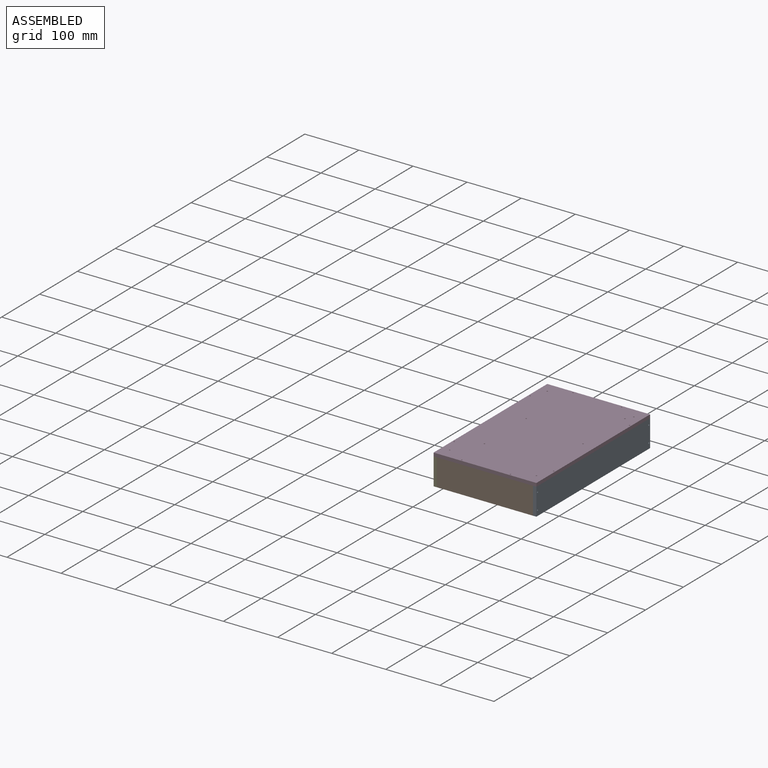
[diagram: assembled view]
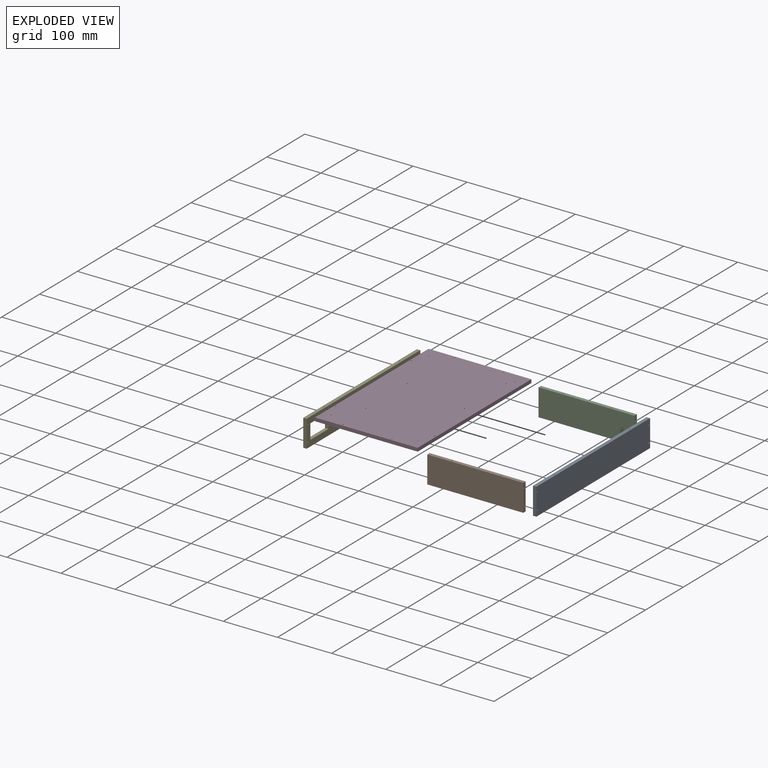
[diagram: exploded view]
GUIDED TOUR — MATED ASSEMBLY (Onshape document be04a6efa97a7b96dd22752b, AutoMate assembly be04a6efa97a7b96dd22752b_beda1ac04cc98a3a99c3953f_c620594ce4365db78ad1adce_default)

This assembly has 5 components, labeled P0..P4 below (a component is one placed occurrence of a part; the same part can appear more than once), held together by 8 mates. A mate is a constraint between two components; its type names the relative motion it leaves free:
  FASTENED — locks the two components together rigidly (no relative motion),
  PLANAR — leaves sliding in the plane through the listed point (normal = the listed direction) and rotation about that normal free.
Axis/direction vectors are unit vectors and 'through' points are millimeter coordinates, both in the assembly's world frame.

MATES
  1. FASTENED "Fastened 1": P1 <-> P0, direction (1.000, 0.000, 0.000) through (73.60, -127.81, 28.02) mm
  2. PLANAR "Planar 5": P3 <-> P0, direction (1.000, 0.000, 0.000) through (79.95, 19.01, 41.20) mm
  3. PLANAR "Planar 3": P4 <-> P1, direction (1.000, 0.000, 0.000) through (-103.70, 30.97, 12.99) mm
  4. FASTENED "Fastened 3": P4 <-> P1, direction (1.000, 0.000, 0.000) through (-103.70, -127.81, 28.02) mm
  5. FASTENED "Fastened 2": P2 <-> P0, direction (1.000, 0.000, 0.000) through (73.60, 165.84, 28.02) mm
  6. PLANAR "Planar 1": P2 <-> P0, direction (1.000, 0.000, 0.000) through (73.60, 169.01, 13.02) mm
  7. PLANAR "Planar 2": P2 <-> P0, direction (0.000, 0.000, 1.000) through (-15.05, 165.84, 38.02) mm
  8. FASTENED "Fastened 4": P3 <-> P0, direction (0.000, 0.000, -1.000) through (76.78, -80.99, 38.02) mm

ASSEMBLY ORDER
  1. P2 — the base component [order verified]
  2. P1 [order verified]
  3. P4 [order verified]
  4. P3 [order verified]
  5. P0 [order verified]
Order-tag legend:
  [order verified] — this step's position reverses a verified removal order: the component was checked to insert without passing through the ones already placed.

Of the 5 components, 5 carry the full construction recipe — the FeatureScript program that regenerates the part's solid from scratch; the rest are supplied as boundary geometry only.
Each toured component is shown spotlighted twice — in the assembled view, then in the exploded view, where a leader line traces a displaced component back to its assembled socket (saturated green if recipe-attached, orange if geometry-only; every other component desaturated gray) — followed by its recipe or geometry summary and the mates that hold it.
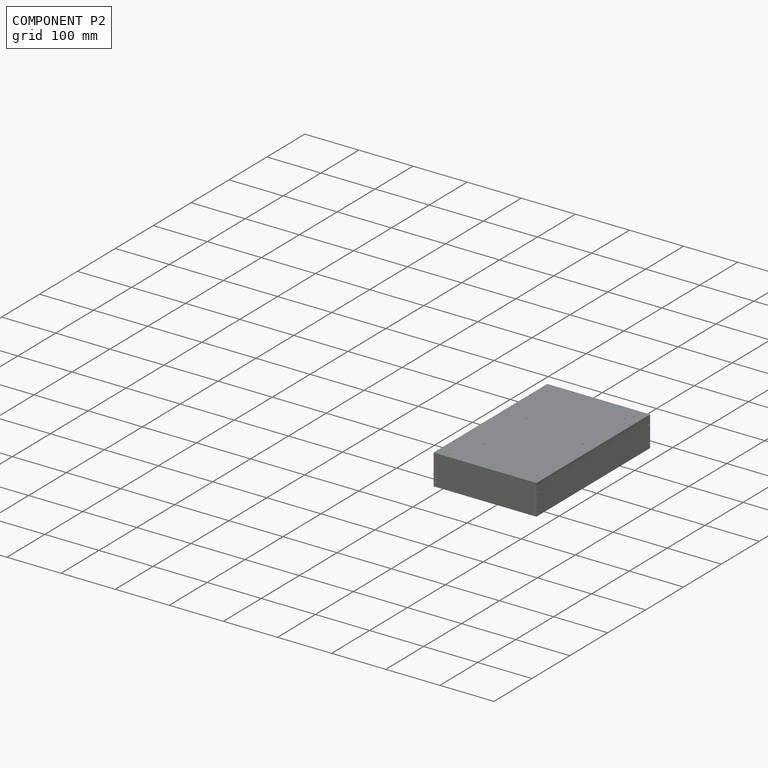
[diagram: component P2 — assembled]
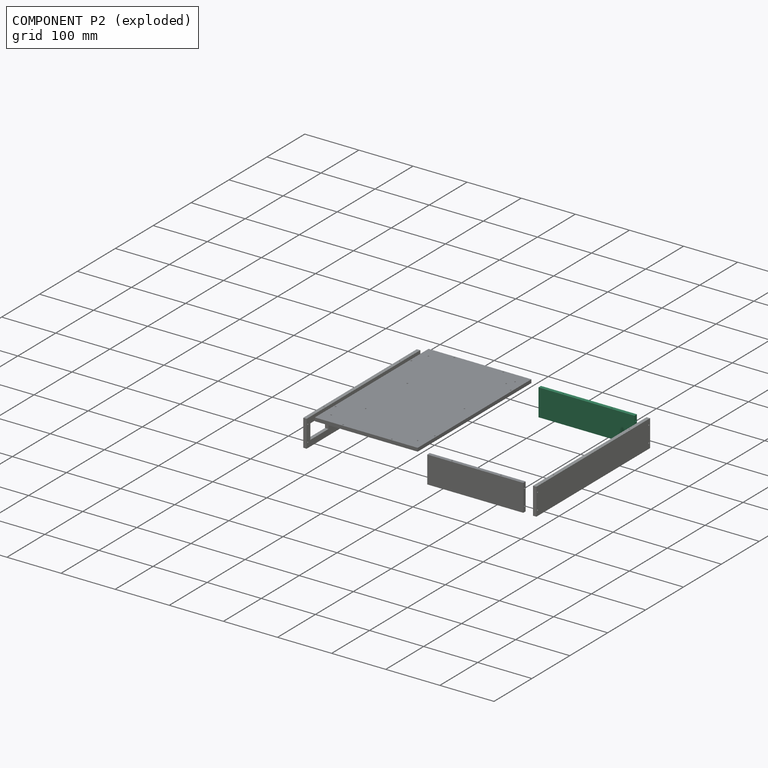
[diagram: component P2 — exploded]
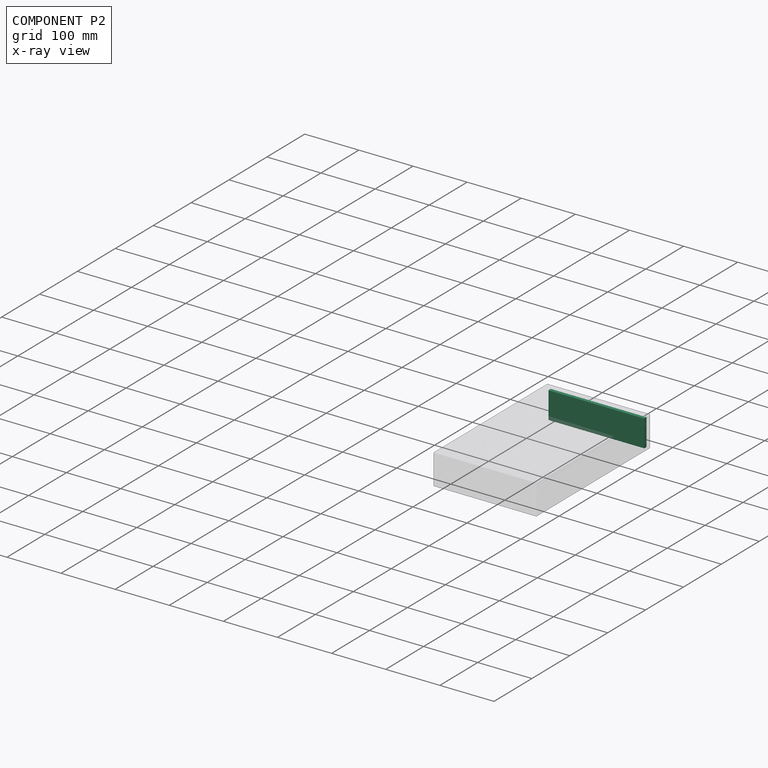
[diagram: component P2 — x-ray view]
COMPONENT P2 — same part as P1 (CADFS 00158776); its construction recipe is shown at P1.
Held by: FASTENED mate "Fastened 2" to P0; PLANAR mate "Planar 1" to P0; PLANAR mate "Planar 2" to P0.
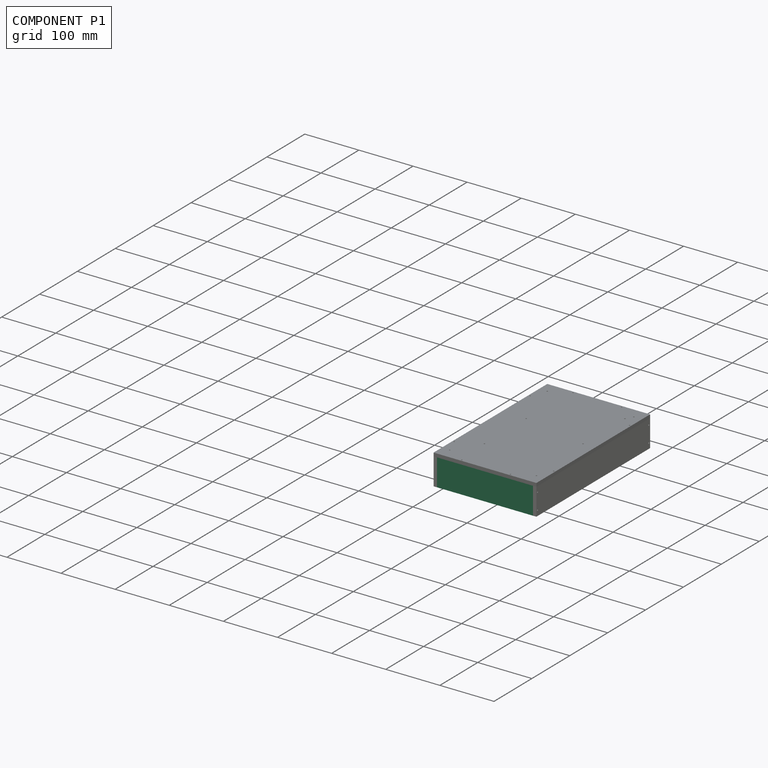
[diagram: component P1 — assembled]
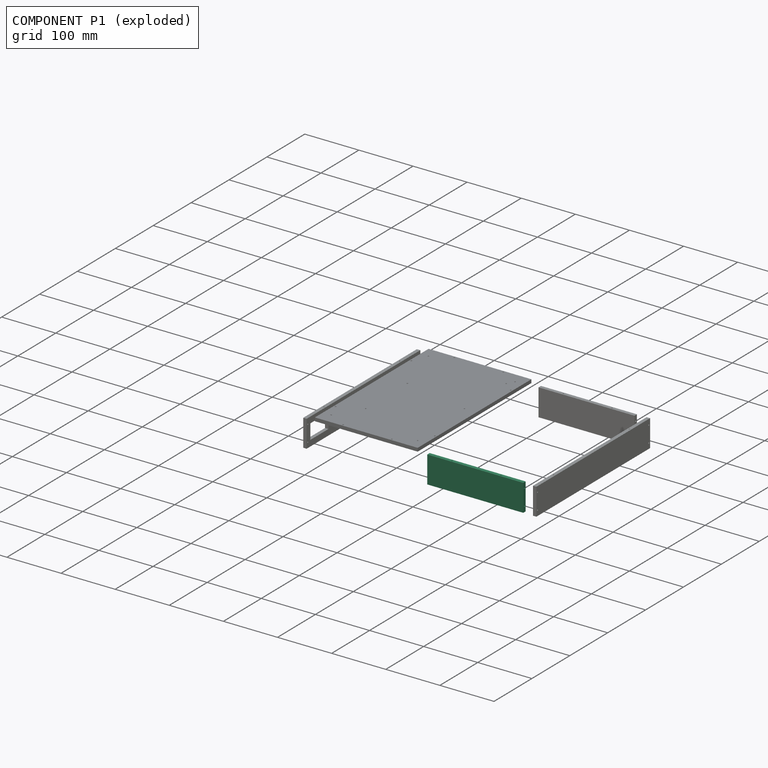
[diagram: component P1 — exploded]
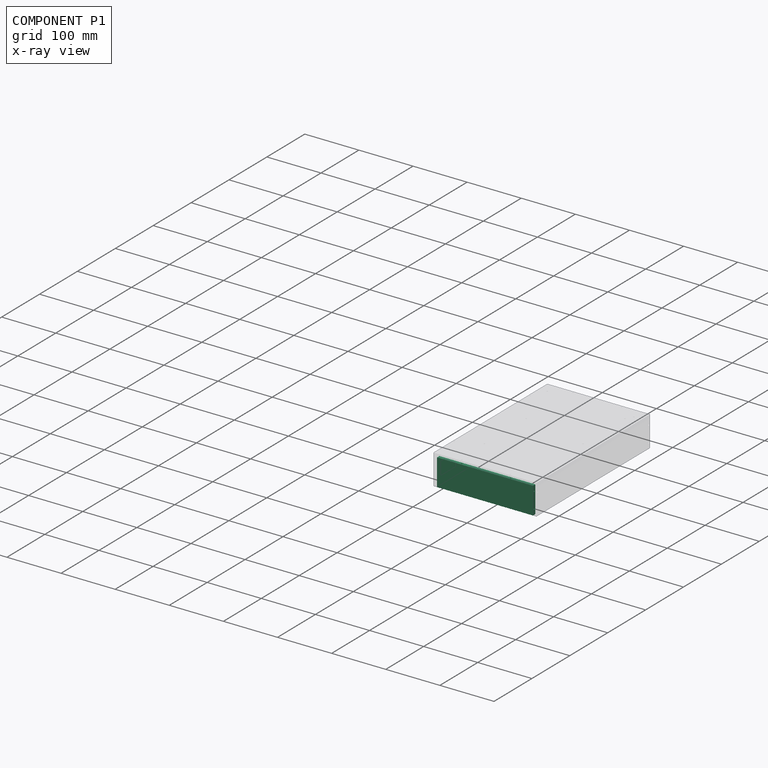
[diagram: component P1 — x-ray view]
COMPONENT P1 — recipe-attached (CADFS 00158776, mesh-verified: the recipe's output STEP matches this component's geometry to below the mesh-comparison resolution (tessellation chordal tolerance ~0.276 mm)).
Held by: FASTENED mate "Fastened 1" to P0; PLANAR mate "Planar 3" to P4; FASTENED mate "Fastened 3" to P4.
Construction recipe (FeatureScript — the CAD program that rebuilds this solid; sketch coordinates are in the units given by the * unit suffixes, e.g. mm):

FeatureScript 1511;
import(path : "onshape/std/geometry.fs", version : "1511.0");
import(path : "onshape/std/common.fs", version : "1511.0");
const mm = millimeter;
const VERTEX = EntityType.VERTEX;
const EDGE = EntityType.EDGE;
const FACE = EntityType.FACE;
const BODY = EntityType.BODY;
function v(x, y){return vector(x, y);}
function OD(order){return orderDisambiguation(order);}
function OSD(set){return originalSetDisambiguation(set);}
function TD(topology){return topologyDisambiguation(topology);}
function TDD(query){return trueDependencyDisambiguation(query);}
function sQuery(a, b, c) {return sketchEntityQuery(a, b, c);}

annotation { "Feature Type Name" : "Feature", "Feature Type Description" : "" }
export const myFeature = defineFeature(function(context is Context, id is Id, definition is map)
    precondition{}
    {
        {
            var Q0;
            Q0=qCreatedBy(makeId("Front.planeOp"),FACE);
            var sketch = newSketch(context, id + "F0", { "sketchPlane" : qUnion([Q0])});
            skLineSegment(sketch, "E0.bottom", {"start": v(88.65, -25) * mm, "end": v(-88.65, -25) * mm});
            skLineSegment(sketch, "E0.top", {"start": v(88.65, 25) * mm, "end": v(-88.65, 25) * mm});
            skLineSegment(sketch, "E0.left", {"start": v(88.65, -25) * mm, "end": v(88.65, 25) * mm});
            skLineSegment(sketch, "E0.right", {"start": v(-88.65, -25) * mm, "end": v(-88.65, 25) * mm});
            skPoint(sketch, "E0.middle", {"position": v(0, 0) * mm});
            skSolve(sketch);
        }
        {
            var Q0;
            Q0=qSketchRegion(id+"F0",true);
            extrude(context, id + "F1", {"entities" : qUnion([Q0]), "endBound" : BoundingType.SYMMETRIC, "depth" : 6.35 * mm});
        }
        {
            var Q0;
            Q0=makeQuery(id+"F1.opExtrude","SWEPT_FACE",FACE,{"disambiguationData":[OSD([sQuery(id+"F0.wireOp",EDGE,"E0.top")])]});
            var sketch = newSketch(context, id + "F2", { "sketchPlane" : qUnion([Q0])});
            skCircle(sketch, "E1", {"center": v(-45, 0) * mm, "radius": 1.5 * mm});
            skCircle(sketch, "E2.MirrorC", {"center": v(45, 0) * mm, "radius": 1.5 * mm});
            skSolve(sketch);
        }
        {
            var Q0;
            Q0=sQuery(id+"F2.wireOp",VERTEX,"E1.center");
            var Q1;
            Q1=sQuery(id+"F2.wireOp",VERTEX,"E2.MirrorC.center");
            var Q2;
            Q2=makeQuery(id+"F1.opExtrude","SWEPT_BODY",BODY,{"disambiguationData":[OSD([sQuery(id+"F0.wireOp",EDGE,"E0.bottom"),sQuery(id+"F0.wireOp",EDGE,"E0.top"),sQuery(id+"F0.wireOp",EDGE,"E0.left"),sQuery(id+"F0.wireOp",EDGE,"E0.right")])]});
            hole(context, id + "F3", {"style" : HoleStyle.SIMPLE, "endStyle" : HoleEndStyle.BLIND, "standardTappedOrClearance" : lookupTablePath({ "standard" : "ISO", "engagement" : "75%", "pitch" : "0.6 mm", "size" : "M3", "type" : "Tapped" }), "standardBlindInLast" : lookupTablePath({ "standard" : "ISO", "engagement" : "75%", "pitch" : "0.6 mm", "size" : "M3", "type" : "Tapped" }), "holeDiameter" : 2.4 * mm, "holeDepth" : 12 * mm, "locations" : qUnion([Q0, Q1]), "scope" : qUnion([Q2])});
        }
        {
            var Q0;
            Q0=makeQuery(id+"F1.opExtrude","SWEPT_FACE",FACE,{"disambiguationData":[OSD([sQuery(id+"F0.wireOp",EDGE,"E0.left")])]});
            var sketch = newSketch(context, id + "F4", { "sketchPlane" : qUnion([Q0])});
            skCircle(sketch, "E3", {"center": v(0, -15) * mm, "radius": 1.5 * mm});
            skCircle(sketch, "E4.MirrorC", {"center": v(0, 15) * mm, "radius": 1.5 * mm});
            skSolve(sketch);
        }
        {
            var Q0;
            Q0=makeQuery(id+"F1.opExtrude","SWEPT_FACE",FACE,{"disambiguationData":[OSD([sQuery(id+"F0.wireOp",EDGE,"E0.right")])]});
            var sketch = newSketch(context, id + "F5", { "sketchPlane" : qUnion([Q0])});
            skCircle(sketch, "E5", {"center": v(0, -15) * mm, "radius": 1.5 * mm});
            skCircle(sketch, "E6.MirrorC", {"center": v(0, 15) * mm, "radius": 1.5 * mm});
            skSolve(sketch);
        }
        {
            var Q0;
            Q0=sQuery(id+"F5.wireOp",VERTEX,"E6.MirrorC.center");
            var Q1;
            Q1=sQuery(id+"F5.wireOp",VERTEX,"E5.center");
            var Q2;
            Q2=sQuery(id+"F4.wireOp",VERTEX,"E4.MirrorC.center");
            var Q3;
            Q3=sQuery(id+"F4.wireOp",VERTEX,"E3.center");
            var Q4;
            Q4=makeQuery(id+"F1.opExtrude","SWEPT_BODY",BODY,{"disambiguationData":[OSD([sQuery(id+"F0.wireOp",EDGE,"E0.bottom"),sQuery(id+"F0.wireOp",EDGE,"E0.top"),sQuery(id+"F0.wireOp",EDGE,"E0.left"),sQuery(id+"F0.wireOp",EDGE,"E0.right")])]});
            hole(context, id + "F6", {"style" : HoleStyle.SIMPLE, "endStyle" : HoleEndStyle.BLIND, "standardTappedOrClearance" : lookupTablePath({ "standard" : "ISO", "engagement" : "75%", "pitch" : "0.6 mm", "size" : "M3", "type" : "Tapped" }), "standardBlindInLast" : lookupTablePath({ "standard" : "ISO", "engagement" : "75%", "pitch" : "0.6 mm", "size" : "M3", "type" : "Tapped" }), "holeDiameter" : 2.4 * mm, "holeDepth" : 12 * mm, "locations" : qUnion([Q0, Q1, Q2, Q3]), "scope" : qUnion([Q4])});
        }
    });
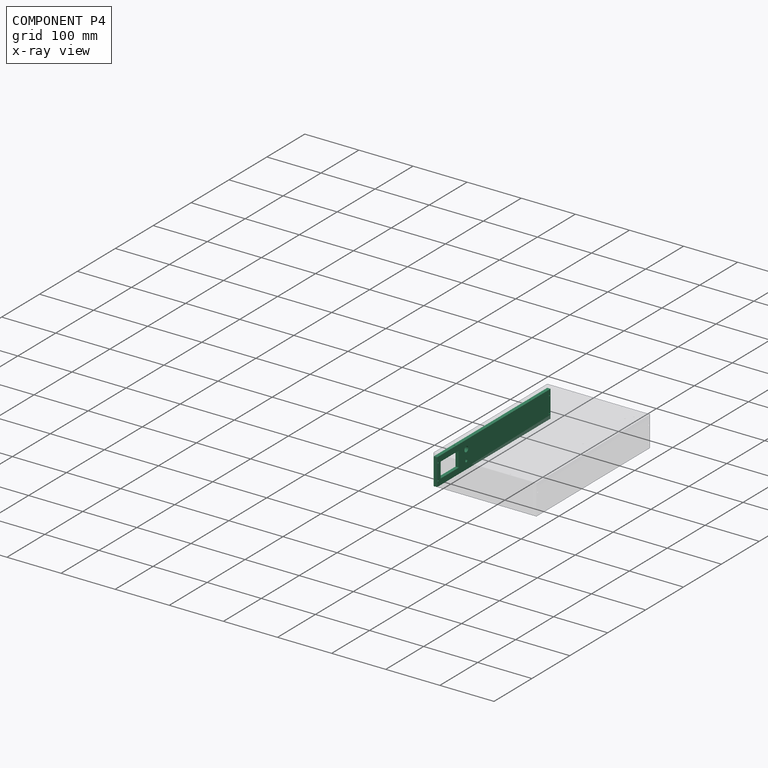
[diagram: component P4 — x-ray view]
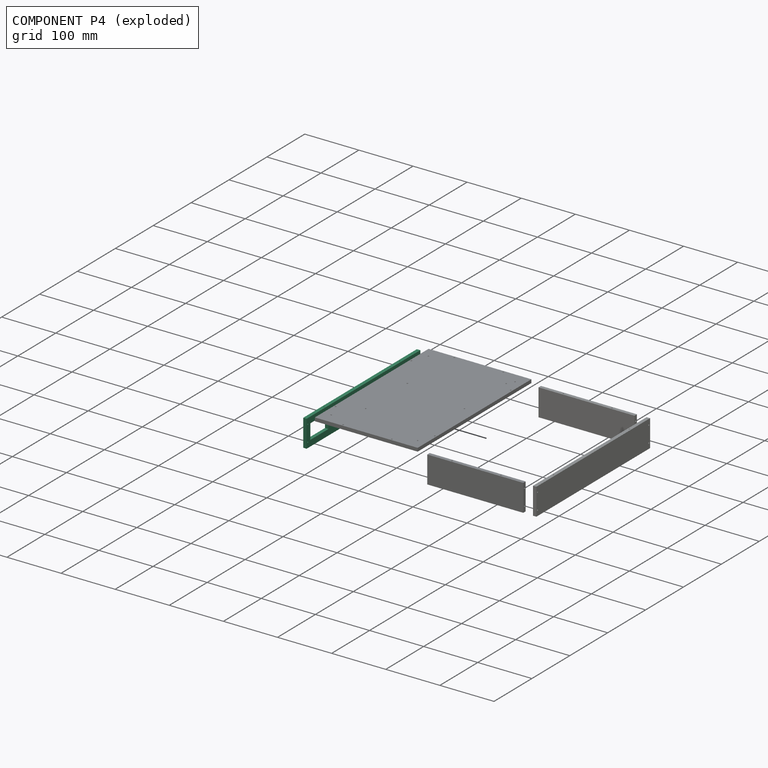
[diagram: component P4 — exploded]
COMPONENT P4 — recipe-attached (CADFS 00158775, mesh-verified: the recipe's output STEP matches this component's geometry to below the mesh-comparison resolution (tessellation chordal tolerance ~0.456 mm)).
Held by: PLANAR mate "Planar 3" to P1; FASTENED mate "Fastened 3" to P1.
Construction recipe (FeatureScript — the CAD program that rebuilds this solid; sketch coordinates are in the units given by the * unit suffixes, e.g. mm):

FeatureScript 1511;
import(path : "onshape/std/geometry.fs", version : "1511.0");
import(path : "onshape/std/common.fs", version : "1511.0");
const mm = millimeter;
const VERTEX = EntityType.VERTEX;
const EDGE = EntityType.EDGE;
const FACE = EntityType.FACE;
const BODY = EntityType.BODY;
function v(x, y){return vector(x, y);}
function OD(order){return orderDisambiguation(order);}
function OSD(set){return originalSetDisambiguation(set);}
function TD(topology){return topologyDisambiguation(topology);}
function TDD(query){return trueDependencyDisambiguation(query);}
function sQuery(a, b, c) {return sketchEntityQuery(a, b, c);}

annotation { "Feature Type Name" : "Feature", "Feature Type Description" : "" }
export const myFeature = defineFeature(function(context is Context, id is Id, definition is map)
    precondition{}
    {
        {
            var Q0;
            Q0=qCreatedBy(makeId("Front.planeOp"),FACE);
            var sketch = newSketch(context, id + "F0", { "sketchPlane" : qUnion([Q0])});
            skLineSegment(sketch, "E0.bottom", {"start": v(150, -25) * mm, "end": v(-150, -25) * mm});
            skLineSegment(sketch, "E0.top", {"start": v(150, 25) * mm, "end": v(-150, 25) * mm});
            skLineSegment(sketch, "E0.left", {"start": v(150, -25) * mm, "end": v(150, 25) * mm});
            skLineSegment(sketch, "E0.right", {"start": v(-150, -25) * mm, "end": v(-150, 25) * mm});
            skPoint(sketch, "E0.middle", {"position": v(0, 0) * mm});
            skLineSegment(sketch, "E1.bottom", {"start": v(-92.5, -14) * mm, "end": v(-140, -14) * mm});
            skLineSegment(sketch, "E1.top", {"start": v(-92.5, 14) * mm, "end": v(-140, 14) * mm});
            skLineSegment(sketch, "E1.left", {"start": v(-92.5, -14) * mm, "end": v(-92.5, 14) * mm});
            skLineSegment(sketch, "E1.right", {"start": v(-140, -14) * mm, "end": v(-140, 14) * mm});
            skPoint(sketch, "E1.middle", {"position": v(-116.25, 0) * mm});
            skCircle(sketch, "E2", {"center": v(-72.5, 9) * mm, "radius": 5 * mm});
            skSolve(sketch);
        }
        {
            var Q0;
            Q0=qSketchRegion(id+"F0",true);
            extrude(context, id + "F1", {"entities" : qUnion([Q0]), "endBound" : BoundingType.SYMMETRIC, "depth" : 6.35 * mm});
        }
        {
            var Q0;
            Q0=makeQuery(id+"F1.opExtrude","CAP_FACE",FACE,{"disambiguationData":[OSD([sQuery(id+"F0.wireOp",EDGE,"E0.bottom"),sQuery(id+"F0.wireOp",EDGE,"E0.top"),sQuery(id+"F0.wireOp",EDGE,"E0.left"),sQuery(id+"F0.wireOp",EDGE,"E0.right")])],"isStart":false});
            var sketch = newSketch(context, id + "F2", { "sketchPlane" : qUnion([Q0])});
            skCircle(sketch, "E3", {"center": v(-146.82, -15) * mm, "radius": 1.5 * mm});
            skCircle(sketch, "E4.MirrorC", {"center": v(146.82, -15) * mm, "radius": 1.5 * mm});
            skCircle(sketch, "E5.MirrorC", {"center": v(-146.82, 15) * mm, "radius": 1.5 * mm});
            skCircle(sketch, "E6.MirrorC", {"center": v(146.82, 15) * mm, "radius": 1.5 * mm});
            skSolve(sketch);
        }
        {
            var Q0;
            Q0=sQuery(id+"F2.wireOp",VERTEX,"E5.MirrorC.center");
            var Q1;
            Q1=sQuery(id+"F2.wireOp",VERTEX,"E3.center");
            var Q2;
            Q2=sQuery(id+"F2.wireOp",VERTEX,"E6.MirrorC.center");
            var Q3;
            Q3=sQuery(id+"F2.wireOp",VERTEX,"E4.MirrorC.center");
            var Q4;
            Q4=makeQuery(id+"F1.opExtrude","SWEPT_BODY",BODY,{"disambiguationData":[OSD([sQuery(id+"F0.wireOp",EDGE,"E0.bottom"),sQuery(id+"F0.wireOp",EDGE,"E0.top"),sQuery(id+"F0.wireOp",EDGE,"E0.left"),sQuery(id+"F0.wireOp",EDGE,"E0.right")])]});
            hole(context, id + "F3", {"style" : HoleStyle.SIMPLE, "endStyle" : HoleEndStyle.THROUGH, "holeDiameter" : 2.4 * mm, "locations" : qUnion([Q0, Q1, Q2, Q3]), "scope" : qUnion([Q4]), "isTappedThrough" : true});
        }
        {
            var Q0;
            Q0=makeQuery(id+"F1.opExtrude","SWEPT_FACE",FACE,{"disambiguationData":[OSD([sQuery(id+"F0.wireOp",EDGE,"E0.top")])]});
            var sketch = newSketch(context, id + "F4", { "sketchPlane" : qUnion([Q0])});
            skCircle(sketch, "E7", {"center": v(-100, 0) * mm, "radius": 1.5 * mm});
            skCircle(sketch, "E8.MirrorC", {"center": v(100, 0) * mm, "radius": 1.5 * mm});
            skSolve(sketch);
        }
        {
            var Q0;
            Q0=sQuery(id+"F4.wireOp",VERTEX,"E7.center");
            var Q1;
            Q1=sQuery(id+"F4.wireOp",VERTEX,"E8.MirrorC.center");
            var Q2;
            Q2=makeQuery(id+"F1.opExtrude","SWEPT_BODY",BODY,{"disambiguationData":[OSD([sQuery(id+"F0.wireOp",EDGE,"E0.bottom"),sQuery(id+"F0.wireOp",EDGE,"E0.top"),sQuery(id+"F0.wireOp",EDGE,"E0.left"),sQuery(id+"F0.wireOp",EDGE,"E0.right")])]});
            hole(context, id + "F5", {"style" : HoleStyle.SIMPLE, "endStyle" : HoleEndStyle.BLIND, "standardTappedOrClearance" : lookupTablePath({ "standard" : "ISO", "engagement" : "75%", "pitch" : "0.6 mm", "size" : "M3", "type" : "Tapped" }), "standardBlindInLast" : lookupTablePath({ "standard" : "ISO", "engagement" : "75%", "pitch" : "0.6 mm", "size" : "M3", "type" : "Tapped" }), "holeDiameter" : 2.4 * mm, "holeDepth" : 12 * mm, "locations" : qUnion([Q0, Q1]), "scope" : qUnion([Q2])});
        }
        {
            var Q0;
            Q0=makeQuery(id+"F1.opExtrude","CAP_FACE",FACE,{"disambiguationData":[OSD([sQuery(id+"F0.wireOp",EDGE,"E0.bottom"),sQuery(id+"F0.wireOp",EDGE,"E0.top"),sQuery(id+"F0.wireOp",EDGE,"E0.left"),sQuery(id+"F0.wireOp",EDGE,"E0.right"),sQuery(id+"F0.wireOp",EDGE,"E1.bottom"),sQuery(id+"F0.wireOp",EDGE,"E1.top"),sQuery(id+"F0.wireOp",EDGE,"E1.left"),sQuery(id+"F0.wireOp",EDGE,"E1.right"),sQuery(id+"F0.wireOp",EDGE,"E2")])],"isStart":false});
            var sketch = newSketch(context, id + "F6", { "sketchPlane" : qUnion([Q0])});
            skCircle(sketch, "E9", {"center": v(-72.5, -10) * mm, "radius": 2.5 * mm});
            skSolve(sketch);
        }
        {
            var Q0;
            Q0=sQuery(id+"F6.wireOp",VERTEX,"E9.center");
            var Q1;
            Q1=makeQuery(id+"F1.opExtrude","SWEPT_BODY",BODY,{"disambiguationData":[OSD([sQuery(id+"F0.wireOp",EDGE,"E0.bottom"),sQuery(id+"F0.wireOp",EDGE,"E0.top"),sQuery(id+"F0.wireOp",EDGE,"E0.left"),sQuery(id+"F0.wireOp",EDGE,"E0.right"),sQuery(id+"F0.wireOp",EDGE,"E1.bottom"),sQuery(id+"F0.wireOp",EDGE,"E1.top"),sQuery(id+"F0.wireOp",EDGE,"E1.left"),sQuery(id+"F0.wireOp",EDGE,"E1.right"),sQuery(id+"F0.wireOp",EDGE,"E2")])]});
            hole(context, id + "F7", {"style" : HoleStyle.SIMPLE, "endStyle" : HoleEndStyle.THROUGH, "standardTappedOrClearance" : lookupTablePath({ "standard" : "ISO", "fit" : "Normal", "size" : "M5", "type" : "Clearance" }), "standardBlindInLast" : lookupTablePath({ "fit" : "Standard", "standard" : "ISO", "size" : "M5", "type" : "Clearance" }), "holeDiameter" : 5.5 * mm, "locations" : qUnion([Q0]), "scope" : qUnion([Q1]), "isTappedThrough" : true});
        }
    });
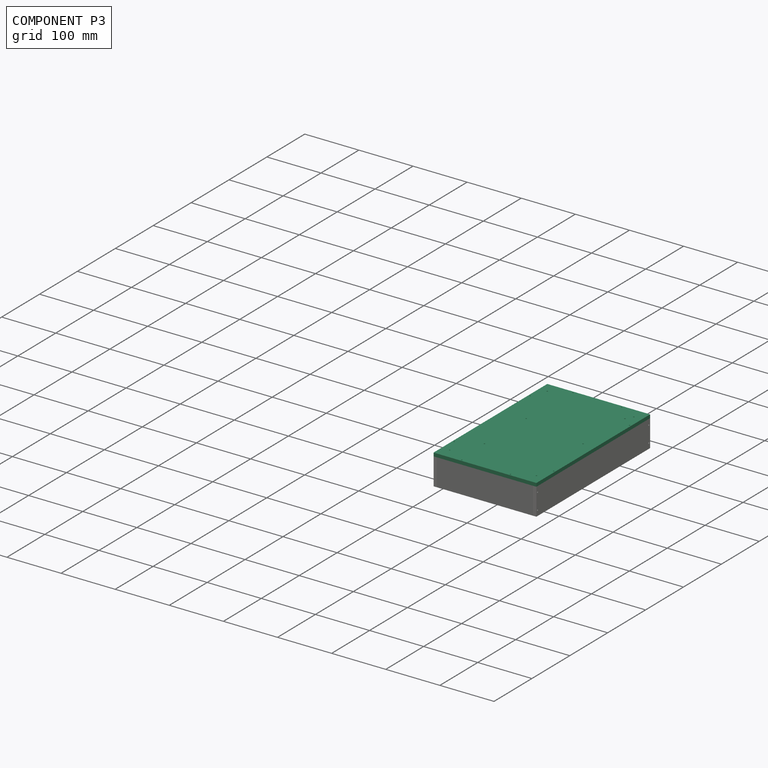
[diagram: component P3 — assembled]
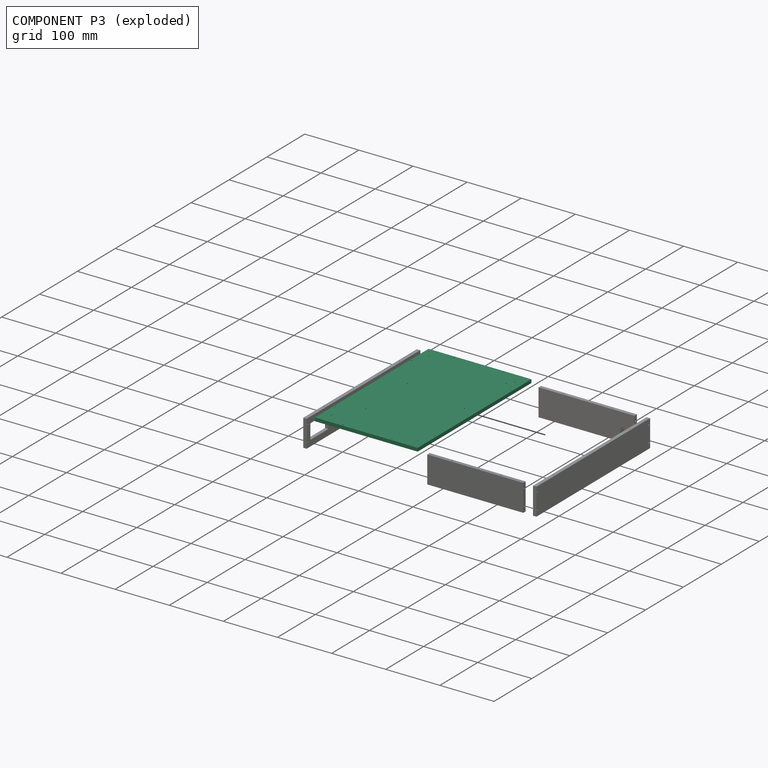
[diagram: component P3 — exploded]
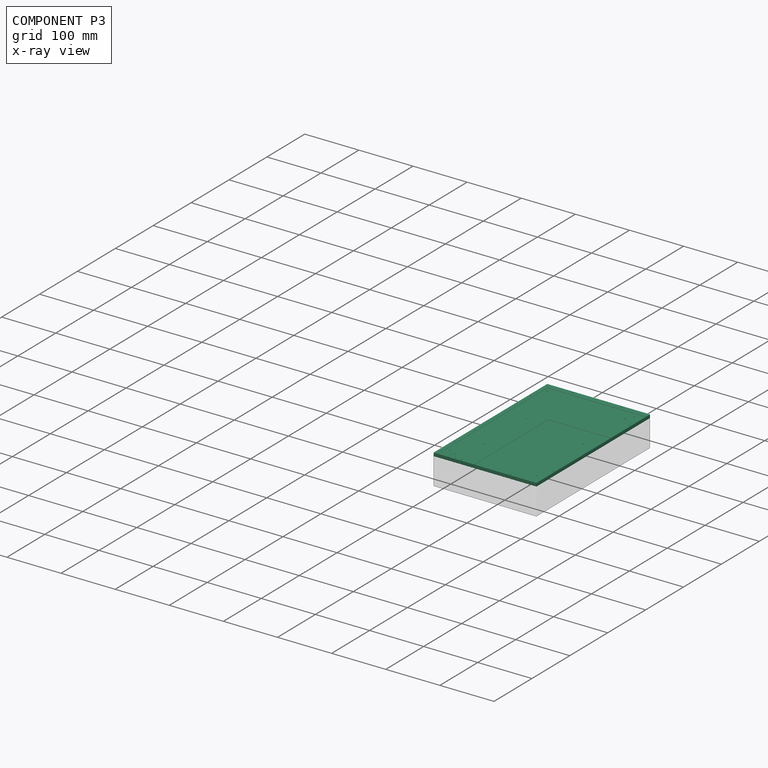
[diagram: component P3 — x-ray view]
COMPONENT P3 — recipe-attached (CADFS 00158773, mesh-verified: the recipe's output STEP matches this component's geometry to below the mesh-comparison resolution (tessellation chordal tolerance ~0.533 mm)).
Held by: PLANAR mate "Planar 5" to P0; FASTENED mate "Fastened 4" to P0.
Construction recipe (FeatureScript — the CAD program that rebuilds this solid; sketch coordinates are in the units given by the * unit suffixes, e.g. mm):

FeatureScript 1511;
import(path : "onshape/std/geometry.fs", version : "1511.0");
import(path : "onshape/std/common.fs", version : "1511.0");
const mm = millimeter;
const VERTEX = EntityType.VERTEX;
const EDGE = EntityType.EDGE;
const FACE = EntityType.FACE;
const BODY = EntityType.BODY;
function v(x, y){return vector(x, y);}
function OD(order){return orderDisambiguation(order);}
function OSD(set){return originalSetDisambiguation(set);}
function TD(topology){return topologyDisambiguation(topology);}
function TDD(query){return trueDependencyDisambiguation(query);}
function sQuery(a, b, c) {return sketchEntityQuery(a, b, c);}

annotation { "Feature Type Name" : "Feature", "Feature Type Description" : "" }
export const myFeature = defineFeature(function(context is Context, id is Id, definition is map)
    precondition{}
    {
        {
            var Q0;
            Q0=qCreatedBy(makeId("Top.planeOp"),FACE);
            var sketch = newSketch(context, id + "F0", { "sketchPlane" : qUnion([Q0])});
            skLineSegment(sketch, "E0.bottom", {"start": v(150, -95) * mm, "end": v(-150, -95) * mm});
            skLineSegment(sketch, "E0.top", {"start": v(150, 95) * mm, "end": v(-150, 95) * mm});
            skLineSegment(sketch, "E0.left", {"start": v(150, -95) * mm, "end": v(150, 95) * mm});
            skLineSegment(sketch, "E0.right", {"start": v(-150, -95) * mm, "end": v(-150, 95) * mm});
            skPoint(sketch, "E0.middle", {"position": v(0, 0) * mm});
            skSolve(sketch);
        }
        {
            var Q0;
            Q0 = qSketchRegion(id + "F0", true);
            extrude(context, id + "F1", {"entities" : qUnion([Q0]), "depth" : 6.35 * mm});
        }
        {
            var Q0;
            Q0=makeQuery(id+"F1.opExtrude","CAP_FACE",FACE,{"disambiguationData":[OSD([sQuery(id+"F0.wireOp",EDGE,"E0.bottom"),sQuery(id+"F0.wireOp",EDGE,"E0.top"),sQuery(id+"F0.wireOp",EDGE,"E0.left"),sQuery(id+"F0.wireOp",EDGE,"E0.right")])],"isStart":false});
            var sketch = newSketch(context, id + "F2", { "sketchPlane" : qUnion([Q0])});
            skCircle(sketch, "E1", {"center": v(-128.5, -80) * mm, "radius": 1.5 * mm});
            skCircle(sketch, "E2.MirrorC", {"center": v(128.5, -80) * mm, "radius": 1.5 * mm});
            skCircle(sketch, "E3.MirrorC", {"center": v(128.5, 80) * mm, "radius": 1.5 * mm});
            skCircle(sketch, "E4.MirrorC", {"center": v(-128.5, 80) * mm, "radius": 1.5 * mm});
            skCircle(sketch, "E5", {"center": v(5.5, -72.5) * mm, "radius": 1.5 * mm});
            skCircle(sketch, "E6", {"center": v(-80, 50) * mm, "radius": 1.5 * mm});
            skCircle(sketch, "E7.1.0.0", {"center": v(30, 50) * mm, "radius": 1.5 * mm});
            skLineSegment(sketch, "E7.direction1", {"start": v(-80, 50) * mm, "end": v(30, 50) * mm, "construction": true});
            skCircle(sketch, "E8.1.0.0", {"center": v(115.5, -72.5) * mm, "radius": 1.5 * mm});
            skLineSegment(sketch, "E8.direction1", {"start": v(5.5, -72.5) * mm, "end": v(115.5, -72.5) * mm, "construction": true});
            skSolve(sketch);
        }
        {
            var Q0;
            Q0=makeQuery(id+"F1.opExtrude","CAP_FACE",FACE,{"disambiguationData":[OSD([sQuery(id+"F0.wireOp",EDGE,"E0.bottom"),sQuery(id+"F0.wireOp",EDGE,"E0.top"),sQuery(id+"F0.wireOp",EDGE,"E0.left"),sQuery(id+"F0.wireOp",EDGE,"E0.right")])],"isStart":false});
            var sketch = newSketch(context, id + "F3", { "sketchPlane" : qUnion([Q0])});
            skCircle(sketch, "E9", {"center": v(-100, -91.83) * mm, "radius": 1.5 * mm});
            skCircle(sketch, "E10", {"center": v(-146.83, -45) * mm, "radius": 1.5 * mm});
            skCircle(sketch, "E11.MirrorC", {"center": v(100, -91.83) * mm, "radius": 1.5 * mm});
            skCircle(sketch, "E12.MirrorC", {"center": v(146.83, -45) * mm, "radius": 1.5 * mm});
            skCircle(sketch, "E13.MirrorC", {"center": v(-146.83, 45) * mm, "radius": 1.5 * mm});
            skCircle(sketch, "E14.MirrorC", {"center": v(-100, 91.83) * mm, "radius": 1.5 * mm});
            skCircle(sketch, "E15.MirrorC", {"center": v(100, 91.83) * mm, "radius": 1.5 * mm});
            skCircle(sketch, "E16.MirrorC", {"center": v(146.83, 45) * mm, "radius": 1.5 * mm});
            skSolve(sketch);
        }
        {
            var Q0;
            Q0=sQuery(id+"F2.wireOp",VERTEX,"E4.MirrorC.center");
            var Q1;
            Q1=sQuery(id+"F2.wireOp",VERTEX,"E7.direction1.start");
            var Q2;
            Q2=sQuery(id+"F2.wireOp",VERTEX,"E1.center");
            var Q3;
            Q3=sQuery(id+"F2.wireOp",VERTEX,"E8.direction1.start");
            var Q4;
            Q4=sQuery(id+"F2.wireOp",VERTEX,"E7.direction1.end");
            var Q5;
            Q5=sQuery(id+"F2.wireOp",VERTEX,"E8.direction1.end");
            var Q6;
            Q6=sQuery(id+"F2.wireOp",VERTEX,"E2.MirrorC.center");
            var Q7;
            Q7=sQuery(id+"F2.wireOp",VERTEX,"E3.MirrorC.center");
            var Q8;
            Q8=sQuery(id+"F3.wireOp",VERTEX,"E14.MirrorC.center");
            var Q9;
            Q9=sQuery(id+"F3.wireOp",VERTEX,"E13.MirrorC.center");
            var Q10;
            Q10=sQuery(id+"F3.wireOp",VERTEX,"E10.center");
            var Q11;
            Q11=sQuery(id+"F3.wireOp",VERTEX,"E9.center");
            var Q12;
            Q12=sQuery(id+"F3.wireOp",VERTEX,"E11.MirrorC.center");
            var Q13;
            Q13=sQuery(id+"F3.wireOp",VERTEX,"E12.MirrorC.center");
            var Q14;
            Q14=sQuery(id+"F3.wireOp",VERTEX,"E16.MirrorC.center");
            var Q15;
            Q15=sQuery(id+"F3.wireOp",VERTEX,"E15.MirrorC.center");
            var Q16;
            Q16=makeQuery(id+"F1.opExtrude","SWEPT_BODY",BODY,{"disambiguationData":[OSD([sQuery(id+"F0.wireOp",EDGE,"E0.bottom"),sQuery(id+"F0.wireOp",EDGE,"E0.top"),sQuery(id+"F0.wireOp",EDGE,"E0.left"),sQuery(id+"F0.wireOp",EDGE,"E0.right")])]});
            hole(context, id + "F4", {"style" : HoleStyle.SIMPLE, "endStyle" : HoleEndStyle.THROUGH, "holeDiameter" : 2.4 * mm, "locations" : qUnion([Q0, Q1, Q2, Q3, Q4, Q5, Q6, Q7, Q8, Q9, Q10, Q11, Q12, Q13, Q14, Q15]), "scope" : qUnion([Q16]), "isTappedThrough" : true});
        }
    });
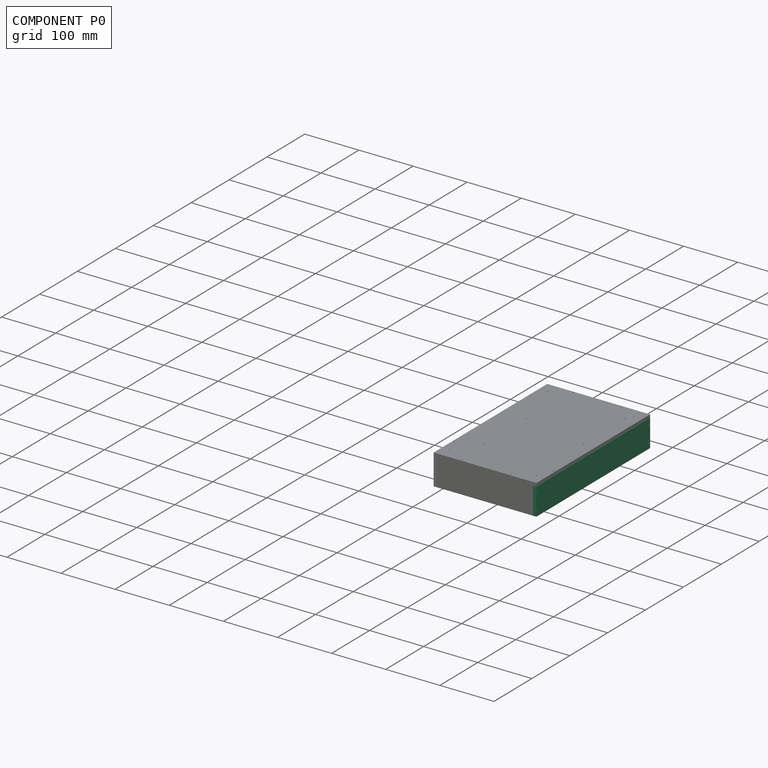
[diagram: component P0 — assembled]
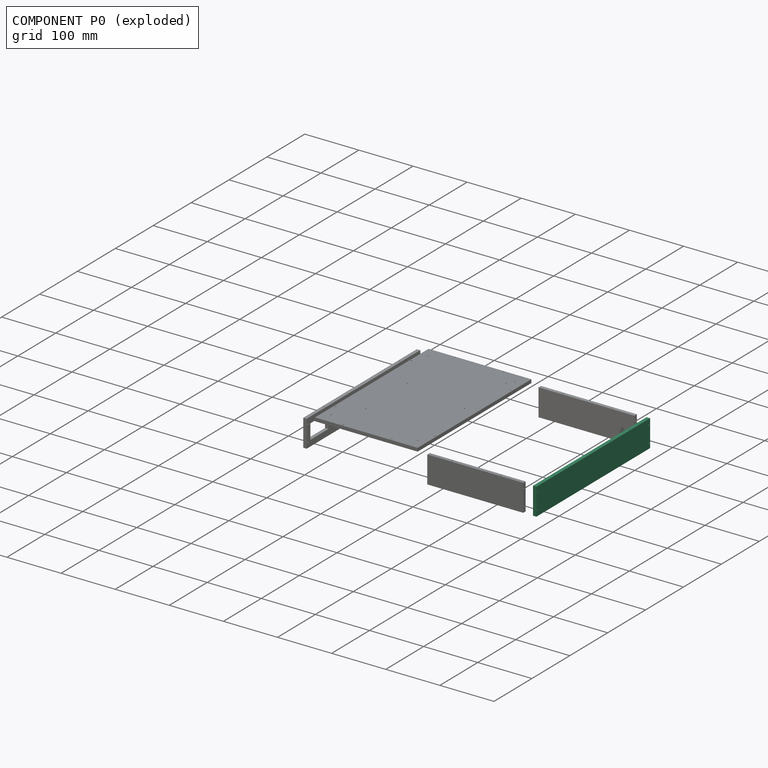
[diagram: component P0 — exploded]
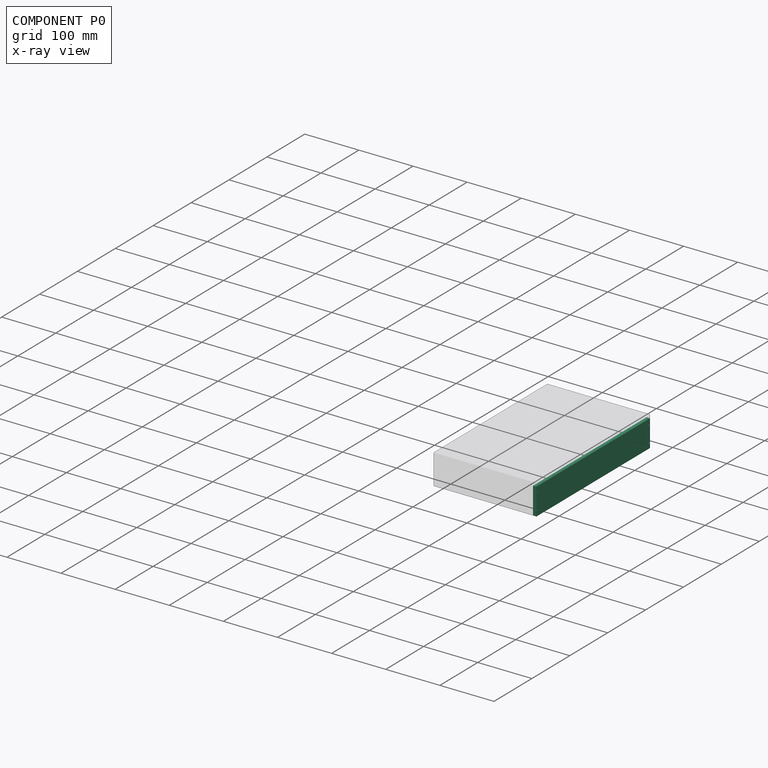
[diagram: component P0 — x-ray view]
COMPONENT P0 — recipe-attached (CADFS 00158774, mesh-verified: the recipe's output STEP matches this component's geometry to below the mesh-comparison resolution (tessellation chordal tolerance ~0.456 mm)).
Held by: FASTENED mate "Fastened 1" to P1; PLANAR mate "Planar 5" to P3; FASTENED mate "Fastened 2" to P2; PLANAR mate "Planar 1" to P2; PLANAR mate "Planar 2" to P2; FASTENED mate "Fastened 4" to P3.
Construction recipe (FeatureScript — the CAD program that rebuilds this solid; sketch coordinates are in the units given by the * unit suffixes, e.g. mm):

FeatureScript 1511;
import(path : "onshape/std/geometry.fs", version : "1511.0");
import(path : "onshape/std/common.fs", version : "1511.0");
const mm = millimeter;
const VERTEX = EntityType.VERTEX;
const EDGE = EntityType.EDGE;
const FACE = EntityType.FACE;
const BODY = EntityType.BODY;
function v(x, y){return vector(x, y);}
function OD(order){return orderDisambiguation(order);}
function OSD(set){return originalSetDisambiguation(set);}
function TD(topology){return topologyDisambiguation(topology);}
function TDD(query){return trueDependencyDisambiguation(query);}
function sQuery(a, b, c) {return sketchEntityQuery(a, b, c);}

annotation { "Feature Type Name" : "Feature", "Feature Type Description" : "" }
export const myFeature = defineFeature(function(context is Context, id is Id, definition is map)
    precondition{}
    {
        {
            var Q0;
            Q0=qCreatedBy(makeId("Front.planeOp"),FACE);
            var sketch = newSketch(context, id + "F0", { "sketchPlane" : qUnion([Q0])});
            skLineSegment(sketch, "E0.bottom", {"start": v(150, -25) * mm, "end": v(-150, -25) * mm});
            skLineSegment(sketch, "E0.top", {"start": v(150, 25) * mm, "end": v(-150, 25) * mm});
            skLineSegment(sketch, "E0.left", {"start": v(150, -25) * mm, "end": v(150, 25) * mm});
            skLineSegment(sketch, "E0.right", {"start": v(-150, -25) * mm, "end": v(-150, 25) * mm});
            skPoint(sketch, "E0.middle", {"position": v(0, 0) * mm});
            skSolve(sketch);
        }
        {
            var Q0;
            Q0 = qSketchRegion(id + "F0", true);
            extrude(context, id + "F1", {"entities" : qUnion([Q0]), "endBound" : BoundingType.SYMMETRIC, "depth" : 6.35 * mm});
        }
        {
            var Q0;
            Q0=makeQuery(id+"F1.opExtrude","CAP_FACE",FACE,{"disambiguationData":[OSD([sQuery(id+"F0.wireOp",EDGE,"E0.bottom"),sQuery(id+"F0.wireOp",EDGE,"E0.top"),sQuery(id+"F0.wireOp",EDGE,"E0.left"),sQuery(id+"F0.wireOp",EDGE,"E0.right")])],"isStart":false});
            var sketch = newSketch(context, id + "F2", { "sketchPlane" : qUnion([Q0])});
            skCircle(sketch, "E1", {"center": v(-146.82, -15) * mm, "radius": 1.5 * mm});
            skCircle(sketch, "E2.MirrorC", {"center": v(146.82, -15) * mm, "radius": 1.5 * mm});
            skCircle(sketch, "E3.MirrorC", {"center": v(-146.82, 15) * mm, "radius": 1.5 * mm});
            skCircle(sketch, "E4.MirrorC", {"center": v(146.82, 15) * mm, "radius": 1.5 * mm});
            skSolve(sketch);
        }
        {
            var Q0;
            Q0=sQuery(id+"F2.wireOp",VERTEX,"E3.MirrorC.center");
            var Q1;
            Q1=sQuery(id+"F2.wireOp",VERTEX,"E1.center");
            var Q2;
            Q2=sQuery(id+"F2.wireOp",VERTEX,"E4.MirrorC.center");
            var Q3;
            Q3=sQuery(id+"F2.wireOp",VERTEX,"E2.MirrorC.center");
            var Q4;
            Q4=makeQuery(id+"F1.opExtrude","SWEPT_BODY",BODY,{"disambiguationData":[OSD([sQuery(id+"F0.wireOp",EDGE,"E0.bottom"),sQuery(id+"F0.wireOp",EDGE,"E0.top"),sQuery(id+"F0.wireOp",EDGE,"E0.left"),sQuery(id+"F0.wireOp",EDGE,"E0.right")])]});
            hole(context, id + "F3", {"style" : HoleStyle.SIMPLE, "endStyle" : HoleEndStyle.THROUGH, "holeDiameter" : 2.4 * mm, "locations" : qUnion([Q0, Q1, Q2, Q3]), "scope" : qUnion([Q4]), "isTappedThrough" : true});
        }
        {
            var Q0;
            Q0=makeQuery(id+"F1.opExtrude","SWEPT_FACE",FACE,{"disambiguationData":[OSD([sQuery(id+"F0.wireOp",EDGE,"E0.top")])]});
            var sketch = newSketch(context, id + "F4", { "sketchPlane" : qUnion([Q0])});
            skCircle(sketch, "E5", {"center": v(-100, 0) * mm, "radius": 1.5 * mm});
            skCircle(sketch, "E6.MirrorC", {"center": v(100, 0) * mm, "radius": 1.5 * mm});
            skSolve(sketch);
        }
        {
            var Q0;
            Q0=sQuery(id+"F4.wireOp",VERTEX,"E5.center");
            var Q1;
            Q1=sQuery(id+"F4.wireOp",VERTEX,"E6.MirrorC.center");
            var Q2;
            Q2=makeQuery(id+"F1.opExtrude","SWEPT_BODY",BODY,{"disambiguationData":[OSD([sQuery(id+"F0.wireOp",EDGE,"E0.bottom"),sQuery(id+"F0.wireOp",EDGE,"E0.top"),sQuery(id+"F0.wireOp",EDGE,"E0.left"),sQuery(id+"F0.wireOp",EDGE,"E0.right")])]});
            hole(context, id + "F5", {"style" : HoleStyle.SIMPLE, "endStyle" : HoleEndStyle.BLIND, "standardTappedOrClearance" : lookupTablePath({ "standard" : "ISO", "engagement" : "75%", "pitch" : "0.6 mm", "size" : "M3", "type" : "Tapped" }), "standardBlindInLast" : lookupTablePath({ "standard" : "ISO", "engagement" : "75%", "pitch" : "0.6 mm", "size" : "M3", "type" : "Tapped" }), "holeDiameter" : 2.4 * mm, "holeDepth" : 12 * mm, "locations" : qUnion([Q0, Q1]), "scope" : qUnion([Q2])});
        }
    });
PROVENANCE & LICENSES
Assembly (occurrences, transforms, mates, per-part STEP geometry): AutoMate dataset, Zenodo record 7776208, CC0.
Construction recipes: CADFS (HuggingFace VladPyatov/CADFS, CC-BY-4.0, layered over the ABC dataset), FeatureScript reconstruction programs keyed by ABC model id.
Join: ABC meta listings map ABC model id -> Onshape documentId; within a shared document, parts are matched by geometric signature (bounding-box dims + volume at 0.1% relative tolerance, exact B-rep face/solid counts).
Verification: 5 of this assembly's 5 components carry a recipe attachment, and every attachment is mesh-verified: the CADFS STEP and the AutoMate member STEP were compared as meshes in their shared local frame (symmetric sampled-point-to-mesh distance); worst across the 5 attachments: below the mesh-comparison resolution (tessellation chordal tolerance ~0.533 mm) on a 355 mm part.
Renders: orthographic iso camera (az 35 / el 25); the floor grid conveys scale (grid pitch printed in each image; no ruler). In the exploded view each component is displaced by its stored offset vector: the offsets alone carry the explosion direction (mate normal/axis signs are not orientation cues and do not encode it), and separation distances are assigned per mate-chain, not proportionally to assembly-order depth.
